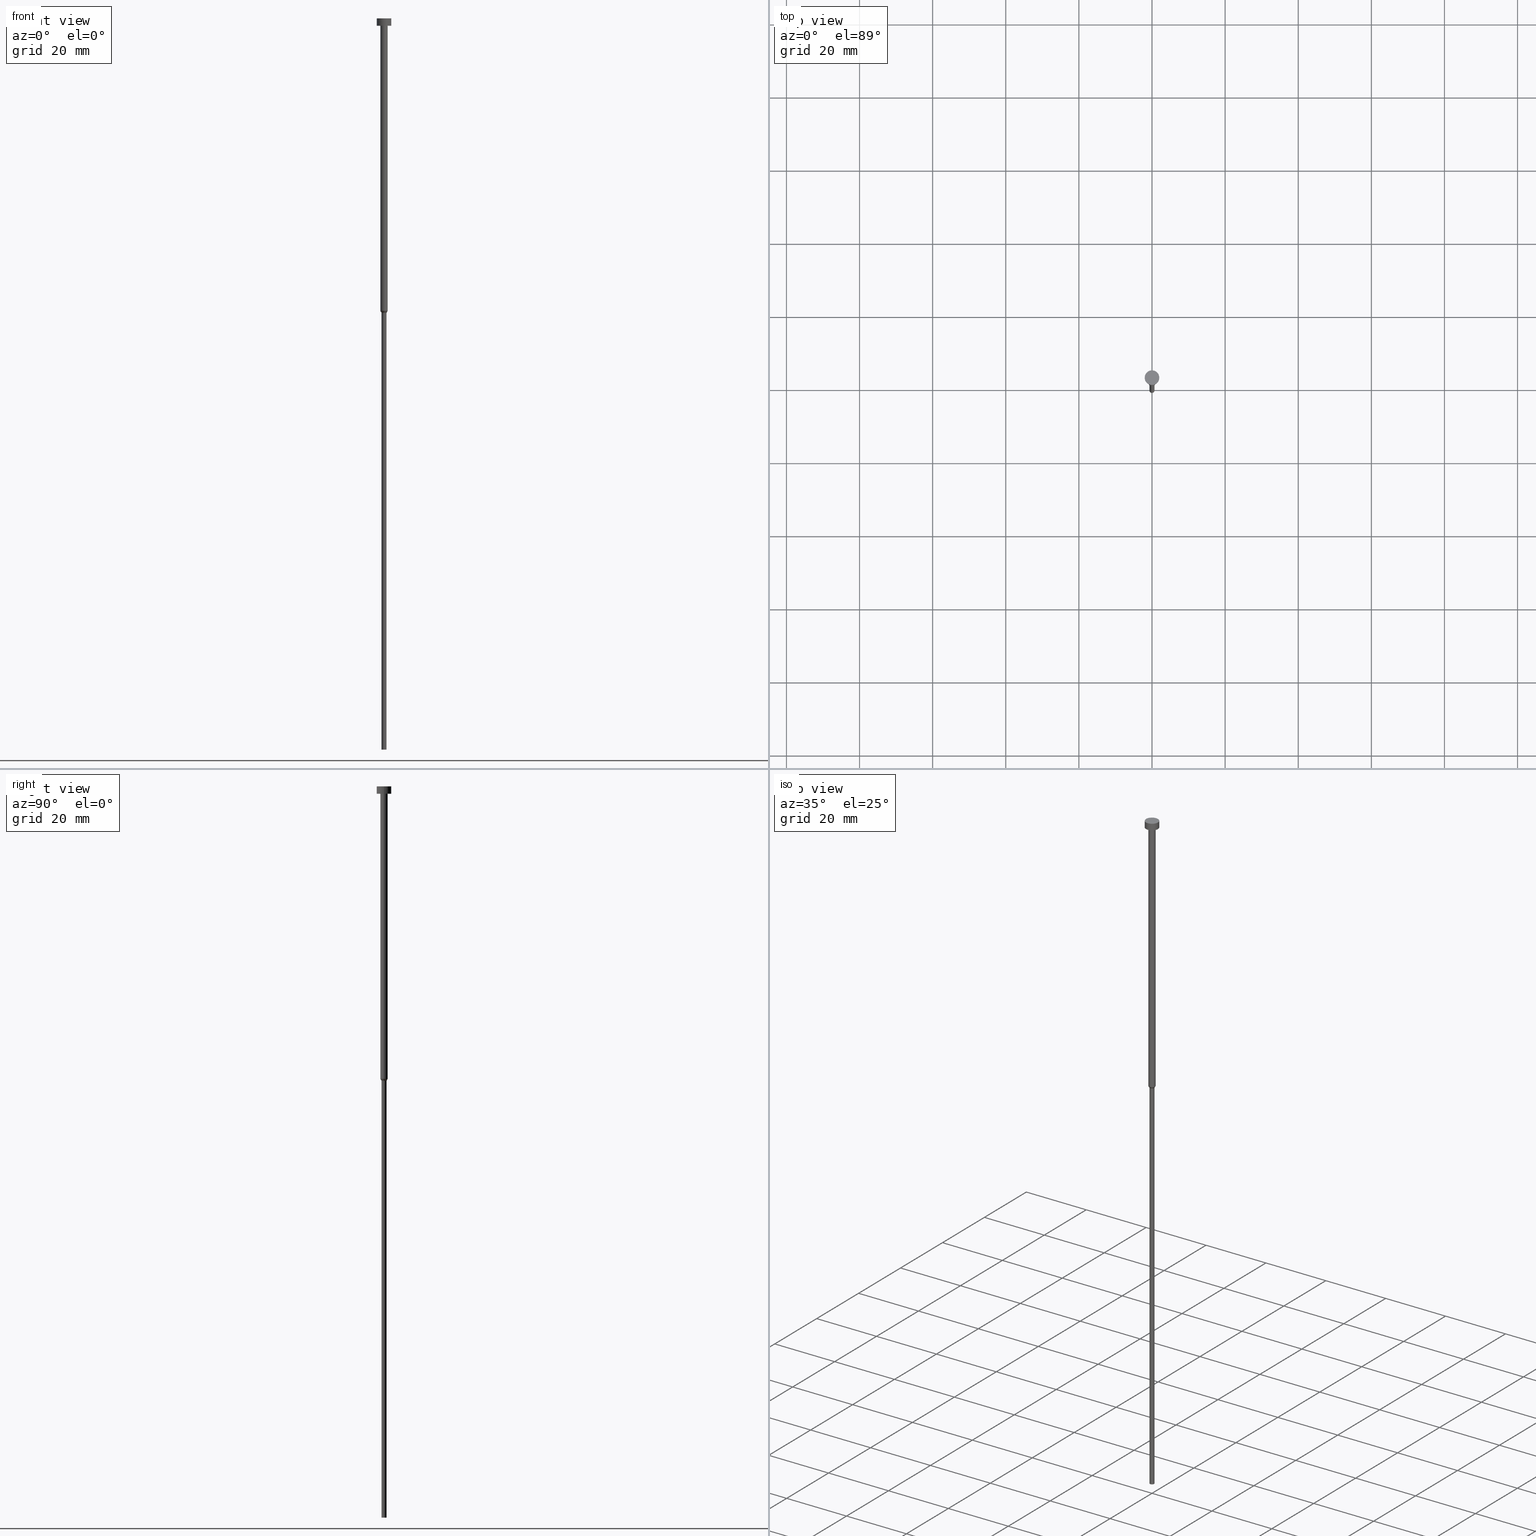
[diagram: canonical four-view strip — front | top / right | iso, engineering-drawing reading convention]
A machine part, canonical four-view strip (front | top / right | iso — engineering-drawing reading convention). The complete STEP part file that produces these views, byte-faithful:
ISO-10303-21;
HEADER;
FILE_DESCRIPTION (( 'STEP AP203' ),
    '1' );
FILE_NAME ('3532.STEP',
    '2023-02-13T10:59:03',
    ( '' ),
    ( '' ),
    'SwSTEP 2.0',
    'SolidWorks 2019',
    '' );
FILE_SCHEMA (( 'CONFIG_CONTROL_DESIGN' ));
ENDSEC;

DATA;
#1 = CIRCLE ( 'NONE', #88, 2.000000000000000000 ) ;
#2 = CC_DESIGN_PERSON_AND_ORGANIZATION_ASSIGNMENT ( #138, #272, ( #220 ) ) ;
#3 = PERSON ( 'NEUR�EN�', 'NEUR�EN�', 'NEUR�EN�', ('NEUR�EN�'), ('NEUR�EN�'), ('NEUR�EN�') ) ;
#4 = ORIENTED_EDGE ( 'NONE', *, *, #189, .F. ) ;
#5 = EDGE_CURVE ( 'NONE', #39, #196, #248, .T. ) ;
#6 = DIRECTION ( 'NONE',  ( -0.000000000000000000, -0.000000000000000000, 1.000000000000000000 ) ) ;
#7 = ORGANIZATION ( 'NEUR�EN�', 'NEUR�EN�', '' ) ;
#8 = PERSON_AND_ORGANIZATION ( #3, #7 ) ;
#9 = VERTEX_POINT ( 'NONE', #250 ) ;
#10 = FACE_OUTER_BOUND ( 'NONE', #89, .T. ) ;
#11 = CARTESIAN_POINT ( 'NONE',  ( 0.000000000000000000, 0.000000000000000000, -80.00000000000000000 ) ) ;
#12 = ORIENTED_EDGE ( 'NONE', *, *, #327, .T. ) ;
#13 = CARTESIAN_POINT ( 'NONE',  ( 0.000000000000000000, 0.000000000000000000, 0.000000000000000000 ) ) ;
#14 = APPLICATION_PROTOCOL_DEFINITION ( 'international standard', 'config_control_design', 1994, #148 ) ;
#15 = ORIENTED_EDGE ( 'NONE', *, *, #156, .T. ) ;
#16 = DIRECTION ( 'NONE',  ( -0.5000000000000041078, 6.123233995736817805E-17, 0.8660254037844362651 ) ) ;
#17 = ADVANCED_FACE ( 'NONE', ( #194 ), #61, .T. ) ;
#18 = DIRECTION ( 'NONE',  ( 1.000000000000000000, 0.000000000000000000, 0.000000000000000000 ) ) ;
#19 = EDGE_LOOP ( 'NONE', ( #66, #276, #116, #69 ) ) ;
#20 = DIRECTION ( 'NONE',  ( 1.000000000000000000, 0.000000000000000000, 0.000000000000000000 ) ) ;
#21 = ORIENTED_EDGE ( 'NONE', *, *, #33, .F. ) ;
#22 = CALENDAR_DATE ( 2023, 13, 2 ) ;
#23 = EDGE_CURVE ( 'NONE', #9, #92, #77, .T. ) ;
#24 = DIRECTION ( 'NONE',  ( 0.000000000000000000, 0.000000000000000000, -1.000000000000000000 ) ) ;
#25 = AXIS2_PLACEMENT_3D ( 'NONE', #103, #306, #301 ) ;
#26 = PERSON_AND_ORGANIZATION ( #3, #7 ) ;
#27 = CARTESIAN_POINT ( 'NONE',  ( 0.000000000000000000, 0.000000000000000000, -2.000000000000000444 ) ) ;
#28 = ADVANCED_FACE ( 'NONE', ( #350, #48 ), #154, .T. ) ;
#29 = DIRECTION ( 'NONE',  ( -0.000000000000000000, -0.000000000000000000, 1.000000000000000000 ) ) ;
#30 = SECURITY_CLASSIFICATION ( '', '', #122 ) ;
#31 = SHAPE_DEFINITION_REPRESENTATION ( #170, #168 ) ;
#32 = DIRECTION ( 'NONE',  ( -0.000000000000000000, -0.000000000000000000, 1.000000000000000000 ) ) ;
#33 = EDGE_CURVE ( 'NONE', #196, #39, #123, .T. ) ;
#34 = CARTESIAN_POINT ( 'NONE',  ( 0.000000000000000000, 0.000000000000000000, -1.224646799147352961E-16 ) ) ;
#35 = AXIS2_PLACEMENT_3D ( 'NONE', #165, #226, #172 ) ;
#36 = CC_DESIGN_DATE_AND_TIME_ASSIGNMENT ( #99, #216, ( #30 ) ) ;
#37 = ORIENTED_EDGE ( 'NONE', *, *, #93, .T. ) ;
#38 = DIRECTION ( 'NONE',  ( -0.000000000000000000, -0.000000000000000000, 1.000000000000000000 ) ) ;
#39 = VERTEX_POINT ( 'NONE', #310 ) ;
#40 = ORIENTED_EDGE ( 'NONE', *, *, #134, .T. ) ;
#41 = FACE_OUTER_BOUND ( 'NONE', #235, .T. ) ;
#42 = ORIENTED_EDGE ( 'NONE', *, *, #87, .T. ) ;
#43 = DIRECTION ( 'NONE',  ( 1.000000000000000000, 0.000000000000000000, 0.000000000000000000 ) ) ;
#44 = PRODUCT_DEFINITION ( 'NEZN�M�', '', #177, #249 ) ;
#45 = VECTOR ( 'NONE', #203, 1000.000000000000000 ) ;
#46 = EDGE_CURVE ( 'NONE', #200, #196, #105, .T. ) ;
#47 = PERSON_AND_ORGANIZATION ( #3, #7 ) ;
#48 = FACE_OUTER_BOUND ( 'NONE', #311, .T. ) ;
#49 = CARTESIAN_POINT ( 'NONE',  ( 0.000000000000000000, 0.000000000000000000, 0.000000000000000000 ) ) ;
#50 =( NAMED_UNIT ( * ) SI_UNIT ( $, .STERADIAN. ) SOLID_ANGLE_UNIT ( ) );
#51 = COORDINATED_UNIVERSAL_TIME_OFFSET ( 1, 0, .AHEAD. ) ;
#52 = DIRECTION ( 'NONE',  ( -0.000000000000000000, -0.000000000000000000, 1.000000000000000000 ) ) ;
#53 = AXIS2_PLACEMENT_3D ( 'NONE', #210, #268, #20 ) ;
#54 = DIRECTION ( 'NONE',  ( -0.000000000000000000, -0.000000000000000000, 1.000000000000000000 ) ) ;
#55 = ORIENTED_EDGE ( 'NONE', *, *, #343, .T. ) ;
#56 = DATE_AND_TIME ( #300, #284 ) ;
#57 = DIRECTION ( 'NONE',  ( 1.000000000000000000, 0.000000000000000000, 0.000000000000000000 ) ) ;
#58 = CIRCLE ( 'NONE', #352, 1.000000000000003109 ) ;
#59 = EDGE_CURVE ( 'NONE', #238, #309, #197, .T. ) ;
#60 = FACE_OUTER_BOUND ( 'NONE', #293, .T. ) ;
#61 = CYLINDRICAL_SURFACE ( 'NONE', #259, 0.6999999999999998446 ) ;
#62 = CONICAL_SURFACE ( 'NONE', #213, 1.000000000000003109, 0.5235987755983037006 ) ;
#63 = ORIENTED_EDGE ( 'NONE', *, *, #5, .F. ) ;
#64 = EDGE_CURVE ( 'NONE', #202, #200, #85, .T. ) ;
#65 = PERSON_AND_ORGANIZATION ( #3, #7 ) ;
#66 = ORIENTED_EDGE ( 'NONE', *, *, #288, .F. ) ;
#67 = ORIENTED_EDGE ( 'NONE', *, *, #23, .F. ) ;
#68 = DIRECTION ( 'NONE',  ( -0.000000000000000000, -0.000000000000000000, 1.000000000000000000 ) ) ;
#69 = ORIENTED_EDGE ( 'NONE', *, *, #134, .F. ) ;
#70 = FACE_OUTER_BOUND ( 'NONE', #285, .T. ) ;
#71 = DIRECTION ( 'NONE',  ( 1.000000000000000000, 0.000000000000000000, 0.000000000000000000 ) ) ;
#72 = PERSON_AND_ORGANIZATION ( #3, #7 ) ;
#73 = ORIENTED_EDGE ( 'NONE', *, *, #59, .F. ) ;
#74 = LINE ( 'NONE', #319, #45 ) ;
#75 = CARTESIAN_POINT ( 'NONE',  ( 0.000000000000000000, 0.000000000000000000, -2.000000000000000444 ) ) ;
#76 = ADVANCED_FACE ( 'NONE', ( #221 ), #283, .T. ) ;
#77 = CIRCLE ( 'NONE', #25, 0.6999999999999998446 ) ;
#78 = LOCAL_TIME ( 11, 59, 3.000000000000000000, #51 ) ;
#79 = DATE_AND_TIME ( #244, #333 ) ;
#80 = ORIENTED_EDGE ( 'NONE', *, *, #331, .T. ) ;
#81 = AXIS2_PLACEMENT_3D ( 'NONE', #312, #344, #211 ) ;
#82 = AXIS2_PLACEMENT_3D ( 'NONE', #342, #96, #106 ) ;
#83 = FACE_OUTER_BOUND ( 'NONE', #322, .T. ) ;
#84 = DIRECTION ( 'NONE',  ( 1.000000000000000000, 0.000000000000000000, 0.000000000000000000 ) ) ;
#85 = LINE ( 'NONE', #251, #280 ) ;
#86 = CARTESIAN_POINT ( 'NONE',  ( 0.000000000000000000, 0.000000000000000000, 0.000000000000000000 ) ) ;
#87 = EDGE_CURVE ( 'NONE', #202, #175, #329, .T. ) ;
#88 = AXIS2_PLACEMENT_3D ( 'NONE', #75, #38, #137 ) ;
#89 = EDGE_LOOP ( 'NONE', ( #321, #230, #256, #317 ) ) ;
#90 = CARTESIAN_POINT ( 'NONE',  ( -2.000000000000000000, 2.449293598294706414E-16, 0.000000000000000000 ) ) ;
#91 = DIRECTION ( 'NONE',  ( 1.000000000000000000, 0.000000000000000000, 0.000000000000000000 ) ) ;
#92 = VERTEX_POINT ( 'NONE', #147 ) ;
#93 = EDGE_CURVE ( 'NONE', #182, #238, #117, .T. ) ;
#94 = CARTESIAN_POINT ( 'NONE',  ( -2.000000000000000000, 2.449293598294706414E-16, -2.000000000000000444 ) ) ;
#95 = CARTESIAN_POINT ( 'NONE',  ( 0.000000000000000000, 0.000000000000000000, -80.00000000000000000 ) ) ;
#96 = DIRECTION ( 'NONE',  ( -0.000000000000000000, -0.000000000000000000, 1.000000000000000000 ) ) ;
#97 = ADVANCED_FACE ( 'NONE', ( #41 ), #263, .T. ) ;
#98 = CARTESIAN_POINT ( 'NONE',  ( 2.000000000000000000, 0.000000000000000000, -2.000000000000000444 ) ) ;
#99 = DATE_AND_TIME ( #22, #78 ) ;
#100 = VECTOR ( 'NONE', #54, 1000.000000000000000 ) ;
#101 = PERSON_AND_ORGANIZATION ( #3, #7 ) ;
#102 = AXIS2_PLACEMENT_3D ( 'NONE', #160, #355, #252 ) ;
#103 = CARTESIAN_POINT ( 'NONE',  ( 0.000000000000000000, 0.000000000000000000, -200.0000000000000000 ) ) ;
#104 = CIRCLE ( 'NONE', #316, 0.6999999999999998446 ) ;
#105 = LINE ( 'NONE', #190, #224 ) ;
#106 = DIRECTION ( 'NONE',  ( 1.000000000000000000, 0.000000000000000000, 0.000000000000000000 ) ) ;
#107 = AXIS2_PLACEMENT_3D ( 'NONE', #109, #151, #239 ) ;
#108 = ORIENTED_EDGE ( 'NONE', *, *, #327, .F. ) ;
#109 = CARTESIAN_POINT ( 'NONE',  ( 0.000000000000000000, 0.000000000000000000, -200.0000000000000000 ) ) ;
#110 = DIRECTION ( 'NONE',  ( 1.000000000000000000, 0.000000000000000000, 0.000000000000000000 ) ) ;
#111 = CARTESIAN_POINT ( 'NONE',  ( -1.000000000000003109, 1.224646799147356905E-16, -80.00000000000000000 ) ) ;
#112 = APPROVAL_DATE_TIME ( #240, #324 ) ;
#113 = ORIENTED_EDGE ( 'NONE', *, *, #93, .F. ) ;
#114 = CYLINDRICAL_SURFACE ( 'NONE', #53, 1.000000000000003331 ) ;
#115 = AXIS2_PLACEMENT_3D ( 'NONE', #167, #32, #118 ) ;
#116 = ORIENTED_EDGE ( 'NONE', *, *, #347, .T. ) ;
#117 = LINE ( 'NONE', #90, #277 ) ;
#118 = DIRECTION ( 'NONE',  ( 1.000000000000000000, 0.000000000000000000, 0.000000000000000000 ) ) ;
#119 = COORDINATED_UNIVERSAL_TIME_OFFSET ( 1, 0, .AHEAD. ) ;
#120 = ORIENTED_EDGE ( 'NONE', *, *, #305, .T. ) ;
#121 = EDGE_CURVE ( 'NONE', #150, #39, #74, .T. ) ;
#122 = SECURITY_CLASSIFICATION_LEVEL ( 'unclassified' ) ;
#123 = CIRCLE ( 'NONE', #217, 1.000000000000003553 ) ;
#124 = CARTESIAN_POINT ( 'NONE',  ( 0.000000000000000000, 0.000000000000000000, -2.000000000000000444 ) ) ;
#125 = ADVANCED_FACE ( 'NONE', ( #323 ), #176, .T. ) ;
#126 = CARTESIAN_POINT ( 'NONE',  ( 0.000000000000000000, 0.000000000000000000, -2.000000000000000444 ) ) ;
#127 = APPROVAL_ROLE ( '' ) ;
#128 = AXIS2_PLACEMENT_3D ( 'NONE', #232, #178, #18 ) ;
#129 = ADVANCED_FACE ( 'NONE', ( #10 ), #315, .T. ) ;
#130 = APPROVAL_PERSON_ORGANIZATION ( #65, #324, #340 ) ;
#131 = MANIFOLD_SOLID_BREP ( 'Rotovat1', #228 ) ;
#132 = DIRECTION ( 'NONE',  ( 0.000000000000000000, -0.000000000000000000, 1.000000000000000000 ) ) ;
#133 = CONICAL_SURFACE ( 'NONE', #115, 1.000000000000003109, 0.5235987755983037006 ) ;
#134 = EDGE_CURVE ( 'NONE', #175, #202, #104, .T. ) ;
#135 = ORIENTED_EDGE ( 'NONE', *, *, #189, .T. ) ;
#136 = LINE ( 'NONE', #234, #157 ) ;
#137 = DIRECTION ( 'NONE',  ( 1.000000000000000000, 0.000000000000000000, 0.000000000000000000 ) ) ;
#138 = PERSON_AND_ORGANIZATION ( #3, #7 ) ;
#139 = ORIENTED_EDGE ( 'NONE', *, *, #219, .F. ) ;
#140 = CIRCLE ( 'NONE', #345, 2.000000000000000000 ) ;
#141 = DIRECTION ( 'NONE',  ( 1.000000000000000000, 0.000000000000000000, 0.000000000000000000 ) ) ;
#142 = APPLICATION_PROTOCOL_DEFINITION ( 'international standard', 'config_control_design', 1994, #231 ) ;
#143 = EDGE_LOOP ( 'NONE', ( #55, #37, #341, #204 ) ) ;
#144 = CARTESIAN_POINT ( 'NONE',  ( 0.000000000000000000, 0.000000000000000000, -80.51961524227066036 ) ) ;
#145 = CARTESIAN_POINT ( 'NONE',  ( 2.000000000000000000, 0.000000000000000000, -2.449293598294705921E-16 ) ) ;
#146 = EDGE_LOOP ( 'NONE', ( #120, #233 ) ) ;
#147 = CARTESIAN_POINT ( 'NONE',  ( 0.6999999999999998446, 0.000000000000000000, -200.0000000000000000 ) ) ;
#148 = APPLICATION_CONTEXT ( 'configuration controlled 3d designs of mechanical parts and assemblies' ) ;
#149 = PERSON_AND_ORGANIZATION_ROLE ( 'creator' ) ;
#150 = VERTEX_POINT ( 'NONE', #111 ) ;
#151 = DIRECTION ( 'NONE',  ( 0.000000000000000000, 0.000000000000000000, -1.000000000000000000 ) ) ;
#152 = CIRCLE ( 'NONE', #128, 2.000000000000000000 ) ;
#153 = PERSON_AND_ORGANIZATION ( #3, #7 ) ;
#154 = PLANE ( 'NONE',  #287 ) ;
#155 = DIRECTION ( 'NONE',  ( 1.000000000000000000, 0.000000000000000000, 0.000000000000000000 ) ) ;
#156 = EDGE_CURVE ( 'NONE', #175, #150, #136, .T. ) ;
#157 = VECTOR ( 'NONE', #16, 1000.000000000000114 ) ;
#158 = PERSON_AND_ORGANIZATION_ROLE ( 'design_supplier' ) ;
#159 = APPROVAL ( #247, 'NEUR�EN�' ) ;
#160 = CARTESIAN_POINT ( 'NONE',  ( 0.000000000000000000, 0.000000000000000000, -200.0000000000000000 ) ) ;
#161 = LINE ( 'NONE', #281, #289 ) ;
#162 = VECTOR ( 'NONE', #242, 1000.000000000000000 ) ;
#163 = AXIS2_PLACEMENT_3D ( 'NONE', #207, #179, #91 ) ;
#164 = APPROVAL_DATE_TIME ( #56, #159 ) ;
#165 = CARTESIAN_POINT ( 'NONE',  ( 0.000000000000000000, 0.000000000000000000, -2.449293598294705921E-16 ) ) ;
#166 = DIRECTION ( 'NONE',  ( -0.000000000000000000, -0.000000000000000000, 1.000000000000000000 ) ) ;
#167 = CARTESIAN_POINT ( 'NONE',  ( 0.000000000000000000, 0.000000000000000000, -80.00000000000000000 ) ) ;
#168 = ADVANCED_BREP_SHAPE_REPRESENTATION ( '3532', ( #131, #163 ), #260 ) ;
#169 = LOCAL_TIME ( 11, 59, 3.000000000000000000, #119 ) ;
#170 = PRODUCT_DEFINITION_SHAPE ( 'NONE', 'NONE',  #44 ) ;
#171 = ORIENTED_EDGE ( 'NONE', *, *, #302, .F. ) ;
#172 = DIRECTION ( 'NONE',  ( 1.000000000000000000, 0.000000000000000000, 0.000000000000000000 ) ) ;
#173 = CC_DESIGN_PERSON_AND_ORGANIZATION_ASSIGNMENT ( #8, #149, ( #44 ) ) ;
#174 = ORIENTED_EDGE ( 'NONE', *, *, #46, .T. ) ;
#175 = VERTEX_POINT ( 'NONE', #338 ) ;
#176 = CYLINDRICAL_SURFACE ( 'NONE', #81, 1.000000000000003331 ) ;
#177 = PRODUCT_DEFINITION_FORMATION_WITH_SPECIFIED_SOURCE ( 'LIBOVOLN�', '', #220, .NOT_KNOWN. ) ;
#178 = DIRECTION ( 'NONE',  ( -0.000000000000000000, -0.000000000000000000, 1.000000000000000000 ) ) ;
#179 = DIRECTION ( 'NONE',  ( 0.000000000000000000, 0.000000000000000000, 1.000000000000000000 ) ) ;
#180 = ORIENTED_EDGE ( 'NONE', *, *, #5, .T. ) ;
#181 = LINE ( 'NONE', #291, #100 ) ;
#182 = VERTEX_POINT ( 'NONE', #94 ) ;
#183 = ADVANCED_FACE ( 'NONE', ( #70 ), #114, .T. ) ;
#184 = LINE ( 'NONE', #337, #162 ) ;
#185 = VERTEX_POINT ( 'NONE', #98 ) ;
#186 = PERSON_AND_ORGANIZATION_ROLE ( 'creator' ) ;
#187 = DIRECTION ( 'NONE',  ( -0.000000000000000000, -0.000000000000000000, 1.000000000000000000 ) ) ;
#188 = CC_DESIGN_APPROVAL ( #282, ( #177 ) ) ;
#189 = EDGE_CURVE ( 'NONE', #182, #185, #1, .T. ) ;
#190 = CARTESIAN_POINT ( 'NONE',  ( 1.000000000000003331, 0.000000000000000000, 0.000000000000000000 ) ) ;
#191 = UNCERTAINTY_MEASURE_WITH_UNIT (LENGTH_MEASURE( 1.000000000000000082E-05 ), #275, 'distance_accuracy_value', 'NONE');
#192 = APPROVAL_PERSON_ORGANIZATION ( #26, #159, #127 ) ;
#193 = CARTESIAN_POINT ( 'NONE',  ( -2.000000000000000000, 2.449293598294706414E-16, -2.449293598294705921E-16 ) ) ;
#194 = FACE_OUTER_BOUND ( 'NONE', #19, .T. ) ;
#195 = DIRECTION ( 'NONE',  ( 0.5000000000000041078, 0.000000000000000000, 0.8660254037844362651 ) ) ;
#196 = VERTEX_POINT ( 'NONE', #227 ) ;
#197 = CIRCLE ( 'NONE', #35, 2.000000000000000000 ) ;
#198 = DIRECTION ( 'NONE',  ( 1.000000000000000000, 0.000000000000000000, 0.000000000000000000 ) ) ;
#199 = ADVANCED_FACE ( 'NONE', ( #330 ), #257, .T. ) ;
#200 = VERTEX_POINT ( 'NONE', #353 ) ;
#201 = DIRECTION ( 'NONE',  ( -0.000000000000000000, -0.000000000000000000, 1.000000000000000000 ) ) ;
#202 = VERTEX_POINT ( 'NONE', #348 ) ;
#203 = DIRECTION ( 'NONE',  ( -0.000000000000000000, -0.000000000000000000, 1.000000000000000000 ) ) ;
#204 = ORIENTED_EDGE ( 'NONE', *, *, #331, .F. ) ;
#205 = DIRECTION ( 'NONE',  ( -0.000000000000000000, -0.000000000000000000, 1.000000000000000000 ) ) ;
#206 = DIRECTION ( 'NONE',  ( -0.000000000000000000, -0.000000000000000000, 1.000000000000000000 ) ) ;
#207 = CARTESIAN_POINT ( 'NONE',  ( 0.000000000000000000, 0.000000000000000000, 0.000000000000000000 ) ) ;
#208 = ORIENTED_EDGE ( 'NONE', *, *, #64, .F. ) ;
#209 = CC_DESIGN_PERSON_AND_ORGANIZATION_ASSIGNMENT ( #101, #186, ( #177 ) ) ;
#210 = CARTESIAN_POINT ( 'NONE',  ( 0.000000000000000000, 0.000000000000000000, 0.000000000000000000 ) ) ;
#211 = DIRECTION ( 'NONE',  ( 1.000000000000000000, 0.000000000000000000, 0.000000000000000000 ) ) ;
#212 = FACE_OUTER_BOUND ( 'NONE', #229, .T. ) ;
#213 = AXIS2_PLACEMENT_3D ( 'NONE', #222, #328, #304 ) ;
#214 = PRODUCT_RELATED_PRODUCT_CATEGORY ( 'detail', '', ( #220 ) ) ;
#215 = CC_DESIGN_APPROVAL ( #324, ( #44 ) ) ;
#216 = DATE_TIME_ROLE ( 'classification_date' ) ;
#217 = AXIS2_PLACEMENT_3D ( 'NONE', #126, #332, #198 ) ;
#218 = COORDINATED_UNIVERSAL_TIME_OFFSET ( 1, 0, .AHEAD. ) ;
#219 = EDGE_CURVE ( 'NONE', #92, #9, #295, .T. ) ;
#220 = PRODUCT ( '3532', '3532', '', ( #264 ) ) ;
#221 = FACE_OUTER_BOUND ( 'NONE', #146, .T. ) ;
#222 = CARTESIAN_POINT ( 'NONE',  ( 0.000000000000000000, 0.000000000000000000, -80.00000000000000000 ) ) ;
#223 = ADVANCED_FACE ( 'NONE', ( #83 ), #62, .T. ) ;
#224 = VECTOR ( 'NONE', #166, 1000.000000000000000 ) ;
#225 = CARTESIAN_POINT ( 'NONE',  ( 0.000000000000000000, 0.000000000000000000, 0.000000000000000000 ) ) ;
#226 = DIRECTION ( 'NONE',  ( -0.000000000000000000, -0.000000000000000000, 1.000000000000000000 ) ) ;
#227 = CARTESIAN_POINT ( 'NONE',  ( 1.000000000000003553, 0.000000000000000000, -2.000000000000000444 ) ) ;
#228 = CLOSED_SHELL ( 'NONE', ( #199, #183, #223, #129, #97, #17, #241, #125, #28, #271, #76 ) ) ;
#229 = EDGE_LOOP ( 'NONE', ( #113, #135, #80, #73 ) ) ;
#230 = ORIENTED_EDGE ( 'NONE', *, *, #288, .T. ) ;
#231 = APPLICATION_CONTEXT ( 'configuration controlled 3d designs of mechanical parts and assemblies' ) ;
#232 = CARTESIAN_POINT ( 'NONE',  ( 0.000000000000000000, 0.000000000000000000, -2.449293598294705921E-16 ) ) ;
#233 = ORIENTED_EDGE ( 'NONE', *, *, #59, .T. ) ;
#234 = CARTESIAN_POINT ( 'NONE',  ( -1.000000000000003109, 1.224646799147356905E-16, -80.00000000000000000 ) ) ;
#235 = EDGE_LOOP ( 'NONE', ( #139, #67 ) ) ;
#236 = AXIS2_PLACEMENT_3D ( 'NONE', #34, #132, #253 ) ;
#237 = DATE_AND_TIME ( #266, #346 ) ;
#238 = VERTEX_POINT ( 'NONE', #193 ) ;
#239 = DIRECTION ( 'NONE',  ( -1.000000000000000000, 0.000000000000000000, -0.000000000000000000 ) ) ;
#240 = DATE_AND_TIME ( #292, #169 ) ;
#241 = ADVANCED_FACE ( 'NONE', ( #60 ), #133, .T. ) ;
#242 = DIRECTION ( 'NONE',  ( -0.000000000000000000, -0.000000000000000000, 1.000000000000000000 ) ) ;
#243 = AXIS2_PLACEMENT_3D ( 'NONE', #124, #294, #84 ) ;
#244 = CALENDAR_DATE ( 2023, 13, 2 ) ;
#245 = DIRECTION ( 'NONE',  ( -1.000000000000000000, 0.000000000000000000, -0.000000000000000000 ) ) ;
#246 = ORIENTED_EDGE ( 'NONE', *, *, #343, .F. ) ;
#247 = APPROVAL_STATUS ( 'not_yet_approved' ) ;
#248 = CIRCLE ( 'NONE', #243, 1.000000000000003553 ) ;
#249 = DESIGN_CONTEXT ( 'detailed design', #148, 'design' ) ;
#250 = CARTESIAN_POINT ( 'NONE',  ( -0.6999999999999998446, 8.572527594031470725E-17, -200.0000000000000000 ) ) ;
#251 = CARTESIAN_POINT ( 'NONE',  ( 1.000000000000003109, 0.000000000000000000, -80.00000000000000000 ) ) ;
#252 = DIRECTION ( 'NONE',  ( 1.000000000000000000, 0.000000000000000000, 0.000000000000000000 ) ) ;
#253 = DIRECTION ( 'NONE',  ( 1.000000000000000000, 0.000000000000000000, 0.000000000000000000 ) ) ;
#254 = AXIS2_PLACEMENT_3D ( 'NONE', #86, #6, #141 ) ;
#255 = CC_DESIGN_PERSON_AND_ORGANIZATION_ASSIGNMENT ( #47, #158, ( #177 ) ) ;
#256 = ORIENTED_EDGE ( 'NONE', *, *, #87, .F. ) ;
#257 = CYLINDRICAL_SURFACE ( 'NONE', #254, 2.000000000000000000 ) ;
#258 = APPROVAL_STATUS ( 'not_yet_approved' ) ;
#259 = AXIS2_PLACEMENT_3D ( 'NONE', #225, #29, #354 ) ;
#260 =( GEOMETRIC_REPRESENTATION_CONTEXT ( 3 ) GLOBAL_UNCERTAINTY_ASSIGNED_CONTEXT ( ( #191 ) ) GLOBAL_UNIT_ASSIGNED_CONTEXT ( ( #275, #297, #50 ) ) REPRESENTATION_CONTEXT ( 'NONE', 'WORKASPACE' ) );
#261 = APPROVAL_ROLE ( '' ) ;
#262 = EDGE_LOOP ( 'NONE', ( #336, #180 ) ) ;
#263 = PLANE ( 'NONE',  #107 ) ;
#264 = MECHANICAL_CONTEXT ( 'NONE', #231, 'mechanical' ) ;
#265 = DIRECTION ( 'NONE',  ( 1.000000000000000000, 0.000000000000000000, 0.000000000000000000 ) ) ;
#266 = CALENDAR_DATE ( 2023, 13, 2 ) ;
#267 = ORIENTED_EDGE ( 'NONE', *, *, #121, .F. ) ;
#268 = DIRECTION ( 'NONE',  ( -0.000000000000000000, -0.000000000000000000, 1.000000000000000000 ) ) ;
#269 = CIRCLE ( 'NONE', #307, 1.000000000000003109 ) ;
#270 = APPROVAL_PERSON_ORGANIZATION ( #72, #282, #261 ) ;
#271 = ADVANCED_FACE ( 'NONE', ( #212 ), #274, .T. ) ;
#272 = PERSON_AND_ORGANIZATION_ROLE ( 'design_owner' ) ;
#273 = PERSON_AND_ORGANIZATION_ROLE ( 'classification_officer' ) ;
#274 = CYLINDRICAL_SURFACE ( 'NONE', #326, 2.000000000000000000 ) ;
#275 =( LENGTH_UNIT ( ) NAMED_UNIT ( * ) SI_UNIT ( .MILLI., .METRE. ) );
#276 = ORIENTED_EDGE ( 'NONE', *, *, #23, .T. ) ;
#277 = VECTOR ( 'NONE', #201, 1000.000000000000000 ) ;
#278 = CARTESIAN_POINT ( 'NONE',  ( 0.000000000000000000, -2.000000000000000000, -2.000000000000000444 ) ) ;
#279 = APPROVAL_DATE_TIME ( #79, #282 ) ;
#280 = VECTOR ( 'NONE', #195, 1000.000000000000114 ) ;
#281 = CARTESIAN_POINT ( 'NONE',  ( 0.6999999999999998446, 0.000000000000000000, 0.000000000000000000 ) ) ;
#282 = APPROVAL ( #286, 'NEUR�EN�' ) ;
#283 = PLANE ( 'NONE',  #236 ) ;
#284 = LOCAL_TIME ( 11, 59, 3.000000000000000000, #218 ) ;
#285 = EDGE_LOOP ( 'NONE', ( #12, #314, #21, #296 ) ) ;
#286 = APPROVAL_STATUS ( 'not_yet_approved' ) ;
#287 = AXIS2_PLACEMENT_3D ( 'NONE', #278, #24, #245 ) ;
#288 = EDGE_CURVE ( 'NONE', #9, #175, #184, .T. ) ;
#289 = VECTOR ( 'NONE', #52, 1000.000000000000000 ) ;
#290 = ORIENTED_EDGE ( 'NONE', *, *, #156, .F. ) ;
#291 = CARTESIAN_POINT ( 'NONE',  ( 2.000000000000000000, 0.000000000000000000, 0.000000000000000000 ) ) ;
#292 = CALENDAR_DATE ( 2023, 13, 2 ) ;
#293 = EDGE_LOOP ( 'NONE', ( #290, #40, #325, #171 ) ) ;
#294 = DIRECTION ( 'NONE',  ( -0.000000000000000000, -0.000000000000000000, 1.000000000000000000 ) ) ;
#295 = CIRCLE ( 'NONE', #102, 0.6999999999999998446 ) ;
#296 = ORIENTED_EDGE ( 'NONE', *, *, #46, .F. ) ;
#297 =( NAMED_UNIT ( * ) PLANE_ANGLE_UNIT ( ) SI_UNIT ( $, .RADIAN. ) );
#298 = COORDINATED_UNIVERSAL_TIME_OFFSET ( 1, 0, .AHEAD. ) ;
#299 = CC_DESIGN_DATE_AND_TIME_ASSIGNMENT ( #237, #313, ( #44 ) ) ;
#300 = CALENDAR_DATE ( 2023, 13, 2 ) ;
#301 = DIRECTION ( 'NONE',  ( 1.000000000000000000, 0.000000000000000000, 0.000000000000000000 ) ) ;
#302 = EDGE_CURVE ( 'NONE', #150, #200, #269, .T. ) ;
#303 = AXIS2_PLACEMENT_3D ( 'NONE', #13, #187, #43 ) ;
#304 = DIRECTION ( 'NONE',  ( 1.000000000000000000, 0.000000000000000000, 0.000000000000000000 ) ) ;
#305 = EDGE_CURVE ( 'NONE', #309, #238, #152, .T. ) ;
#306 = DIRECTION ( 'NONE',  ( -0.000000000000000000, -0.000000000000000000, 1.000000000000000000 ) ) ;
#307 = AXIS2_PLACEMENT_3D ( 'NONE', #11, #68, #110 ) ;
#308 = CC_DESIGN_APPROVAL ( #159, ( #30 ) ) ;
#309 = VERTEX_POINT ( 'NONE', #145 ) ;
#310 = CARTESIAN_POINT ( 'NONE',  ( -1.000000000000003553, 1.224646799147357398E-16, -2.000000000000000444 ) ) ;
#311 = EDGE_LOOP ( 'NONE', ( #246, #4 ) ) ;
#312 = CARTESIAN_POINT ( 'NONE',  ( 0.000000000000000000, 0.000000000000000000, 0.000000000000000000 ) ) ;
#313 = DATE_TIME_ROLE ( 'creation_date' ) ;
#314 = ORIENTED_EDGE ( 'NONE', *, *, #121, .T. ) ;
#315 = CYLINDRICAL_SURFACE ( 'NONE', #303, 0.6999999999999998446 ) ;
#316 = AXIS2_PLACEMENT_3D ( 'NONE', #144, #205, #265 ) ;
#317 = ORIENTED_EDGE ( 'NONE', *, *, #347, .F. ) ;
#318 = CC_DESIGN_SECURITY_CLASSIFICATION ( #30, ( #177 ) ) ;
#319 = CARTESIAN_POINT ( 'NONE',  ( -1.000000000000003331, 1.224646799147357151E-16, 0.000000000000000000 ) ) ;
#320 = COORDINATED_UNIVERSAL_TIME_OFFSET ( 1, 0, .AHEAD. ) ;
#321 = ORIENTED_EDGE ( 'NONE', *, *, #219, .T. ) ;
#322 = EDGE_LOOP ( 'NONE', ( #42, #15, #108, #208 ) ) ;
#323 = FACE_OUTER_BOUND ( 'NONE', #334, .T. ) ;
#324 = APPROVAL ( #258, 'NEUR�EN�' ) ;
#325 = ORIENTED_EDGE ( 'NONE', *, *, #64, .T. ) ;
#326 = AXIS2_PLACEMENT_3D ( 'NONE', #49, #339, #155 ) ;
#327 = EDGE_CURVE ( 'NONE', #200, #150, #58, .T. ) ;
#328 = DIRECTION ( 'NONE',  ( -0.000000000000000000, -0.000000000000000000, 1.000000000000000000 ) ) ;
#329 = CIRCLE ( 'NONE', #82, 0.6999999999999998446 ) ;
#330 = FACE_OUTER_BOUND ( 'NONE', #143, .T. ) ;
#331 = EDGE_CURVE ( 'NONE', #185, #309, #181, .T. ) ;
#332 = DIRECTION ( 'NONE',  ( -0.000000000000000000, -0.000000000000000000, 1.000000000000000000 ) ) ;
#333 = LOCAL_TIME ( 11, 59, 3.000000000000000000, #298 ) ;
#334 = EDGE_LOOP ( 'NONE', ( #267, #349, #174, #63 ) ) ;
#335 = CC_DESIGN_PERSON_AND_ORGANIZATION_ASSIGNMENT ( #153, #273, ( #30 ) ) ;
#336 = ORIENTED_EDGE ( 'NONE', *, *, #33, .T. ) ;
#337 = CARTESIAN_POINT ( 'NONE',  ( -0.6999999999999998446, 8.572527594031470725E-17, 0.000000000000000000 ) ) ;
#338 = CARTESIAN_POINT ( 'NONE',  ( -0.6999999999999998446, 8.572527594031470725E-17, -80.51961524227066036 ) ) ;
#339 = DIRECTION ( 'NONE',  ( -0.000000000000000000, -0.000000000000000000, 1.000000000000000000 ) ) ;
#340 = APPROVAL_ROLE ( '' ) ;
#341 = ORIENTED_EDGE ( 'NONE', *, *, #305, .F. ) ;
#342 = CARTESIAN_POINT ( 'NONE',  ( 0.000000000000000000, 0.000000000000000000, -80.51961524227066036 ) ) ;
#343 = EDGE_CURVE ( 'NONE', #185, #182, #140, .T. ) ;
#344 = DIRECTION ( 'NONE',  ( -0.000000000000000000, -0.000000000000000000, 1.000000000000000000 ) ) ;
#345 = AXIS2_PLACEMENT_3D ( 'NONE', #27, #351, #57 ) ;
#346 = LOCAL_TIME ( 11, 59, 3.000000000000000000, #320 ) ;
#347 = EDGE_CURVE ( 'NONE', #92, #202, #161, .T. ) ;
#348 = CARTESIAN_POINT ( 'NONE',  ( 0.6999999999999998446, 0.000000000000000000, -80.51961524227066036 ) ) ;
#349 = ORIENTED_EDGE ( 'NONE', *, *, #302, .T. ) ;
#350 = FACE_BOUND ( 'NONE', #262, .T. ) ;
#351 = DIRECTION ( 'NONE',  ( -0.000000000000000000, -0.000000000000000000, 1.000000000000000000 ) ) ;
#352 = AXIS2_PLACEMENT_3D ( 'NONE', #95, #206, #71 ) ;
#353 = CARTESIAN_POINT ( 'NONE',  ( 1.000000000000003109, 0.000000000000000000, -80.00000000000000000 ) ) ;
#354 = DIRECTION ( 'NONE',  ( 1.000000000000000000, 0.000000000000000000, 0.000000000000000000 ) ) ;
#355 = DIRECTION ( 'NONE',  ( -0.000000000000000000, -0.000000000000000000, 1.000000000000000000 ) ) ;
ENDSEC;
END-ISO-10303-21;
